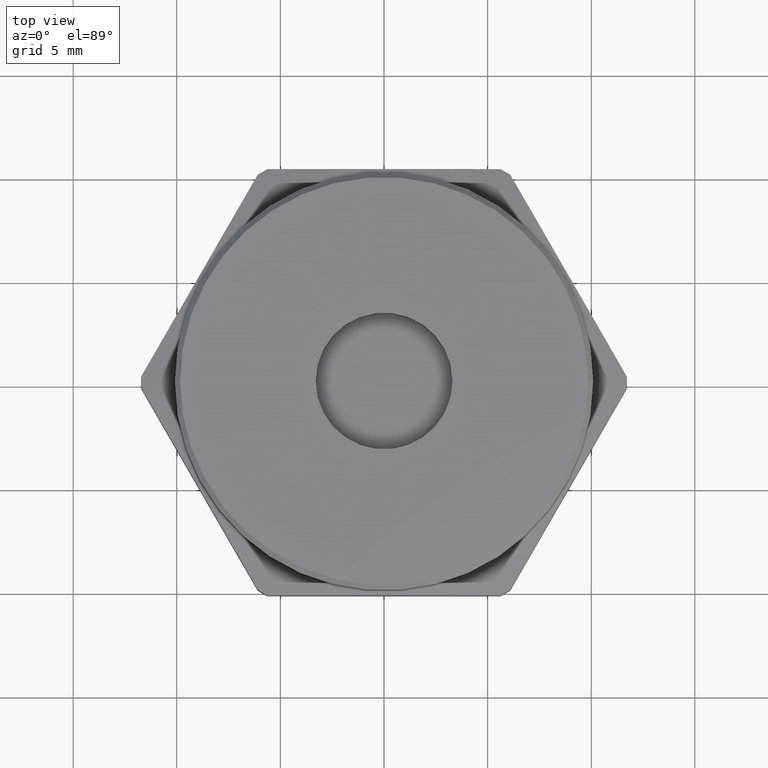
[diagram: clean part render]
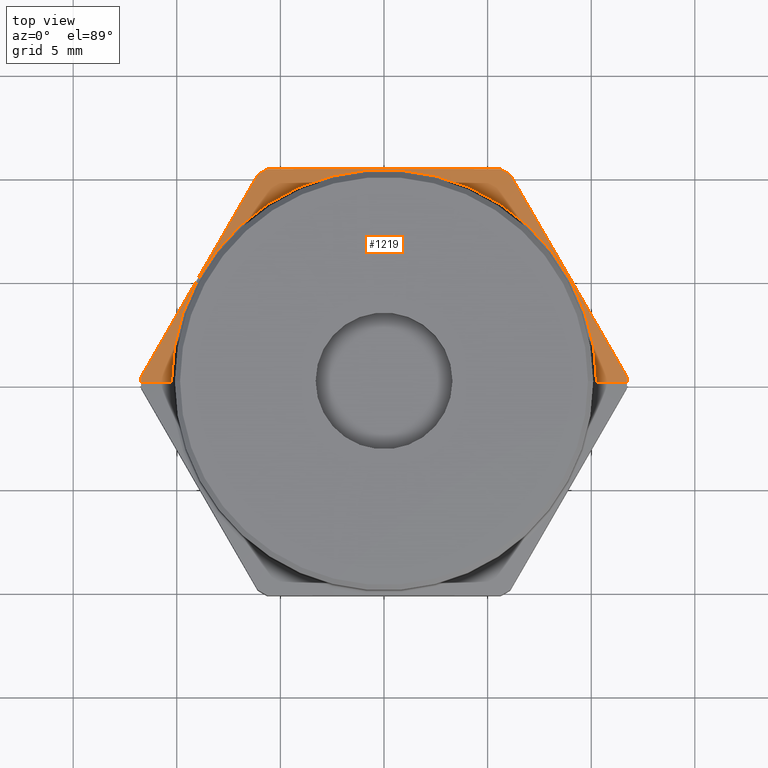
[diagram: same view with one face highlighted and labeled with its STEP entity id]
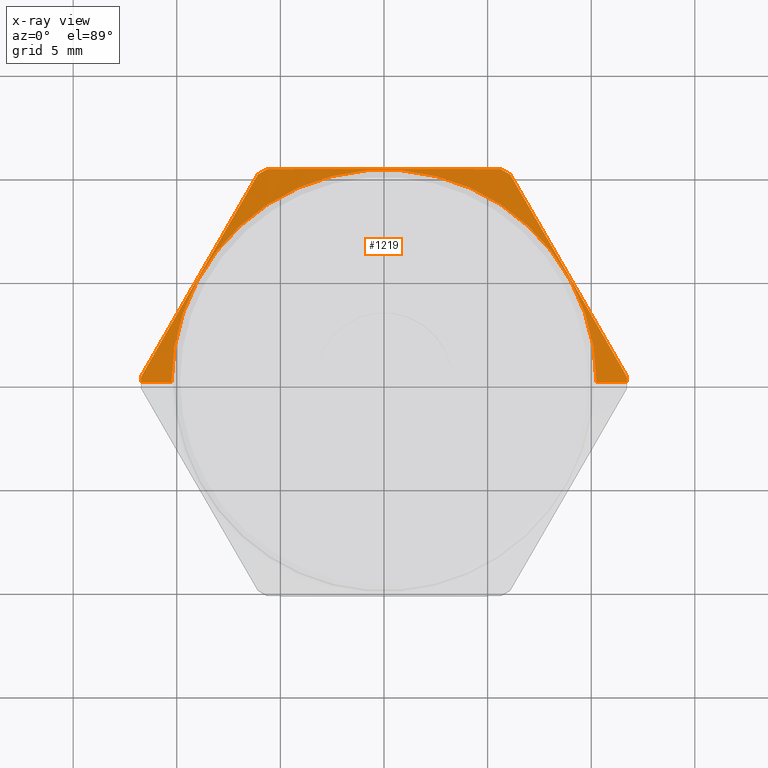
[diagram: x-ray of the same camera — body ghosted, the highlighted face saturated]
A machine part, top view. The second image highlights one B-rep face of the part: STEP entity #1219.
The next image is the same camera in x-ray: the body ghosted, the highlighted face saturated — about 0% of this face is hidden behind the body in this view.
In plain terms, the highlighted conical surface has half-angle 78 deg.
Its self-contained STEP definition (entity closure, byte-faithful):
#70 = CIRCLE ( 'NONE', #240, 0.4616537180435968900 ) ;
#73 = CIRCLE ( 'NONE', #239, 0.4616537180435968900 ) ;
#76 = LINE ( 'NONE', #2208, #79 ) ;
#78 = CIRCLE ( 'NONE', #241, 0.4616537180435968900 ) ;
#79 = VECTOR ( 'NONE', #2209, 39.37007874015747400 ) ;
#80 = LINE ( 'NONE', #2204, #83 ) ;
#81 = CIRCLE ( 'NONE', #242, 0.4038367064734578200 ) ;
#82 = CIRCLE ( 'NONE', #243, 0.4616537180435968900 ) ;
#83 = VECTOR ( 'NONE', #2215, 39.37007874015748100 ) ;
#197 = ORIENTED_EDGE ( 'NONE', *, *, #690, .F. ) ;
#198 = ORIENTED_EDGE ( 'NONE', *, *, #689, .T. ) ;
#199 = ORIENTED_EDGE ( 'NONE', *, *, #688, .F. ) ;
#200 = ORIENTED_EDGE ( 'NONE', *, *, #692, .F. ) ;
#239 = AXIS2_PLACEMENT_3D ( 'NONE', #2198, #2199, #2200 ) ;
#240 = AXIS2_PLACEMENT_3D ( 'NONE', #2205, #2206, #2207 ) ;
#241 = AXIS2_PLACEMENT_3D ( 'NONE', #2212, #2213, #2214 ) ;
#242 = AXIS2_PLACEMENT_3D ( 'NONE', #2220, #2221, #2222 ) ;
#243 = AXIS2_PLACEMENT_3D ( 'NONE', #2225, #2226, #2227 ) ;
#278 = AXIS2_PLACEMENT_3D ( 'NONE', #792, #793, #791 ) ;
#367 = VERTEX_POINT ( 'NONE', #1484 ) ;
#370 = VERTEX_POINT ( 'NONE', #1486 ) ;
#371 = VERTEX_POINT ( 'NONE', #1491 ) ;
#373 = VERTEX_POINT ( 'NONE', #1492 ) ;
#374 = VERTEX_POINT ( 'NONE', #1493 ) ;
#375 = VERTEX_POINT ( 'NONE', #1494 ) ;
#434 = VERTEX_POINT ( 'NONE', #1522 ) ;
#462 = VERTEX_POINT ( 'NONE', #1549 ) ;
#507 = FACE_OUTER_BOUND ( 'NONE', #1317, .T. ) ;
#516 = CONICAL_SURFACE ( 'NONE', #278, 0.4616537180435968900, 1.361356816555569800 ) ;
#544 = B_SPLINE_CURVE_WITH_KNOTS ( 'NONE', 3,
 ( #2196, #2197, #2201, #2202, #2203 ),
 .UNSPECIFIED., .F., .F.,
 ( 4, 1, 4 ),
 ( 1.960092708449298800E-006, 0.005630175714662177800, 0.01125839133661590700 ),
 .UNSPECIFIED. ) ;
#545 = B_SPLINE_CURVE_WITH_KNOTS ( 'NONE', 3,
 ( #2210, #2211, #2216, #2217, #2218 ),
 .UNSPECIFIED., .F., .F.,
 ( 4, 1, 4 ),
 ( 1.960092707716520800E-006, 0.005630175714661432700, 0.01125839133661515000 ),
 .UNSPECIFIED. ) ;
#546 = B_SPLINE_CURVE_WITH_KNOTS ( 'NONE', 3,
 ( #2223, #2224, #2228, #2229, #2230, #2231, #2232, #2233 ),
 .UNSPECIFIED., .F., .F.,
 ( 4, 2, 2, 4 ),
 ( 0.02276292448879223300, 0.02840779419872965100, 0.03123022905369836000, 0.03405266390866706900 ),
 .UNSPECIFIED. ) ;
#688 = EDGE_CURVE ( 'NONE', #370, #462, #73, .T. ) ;
#689 = EDGE_CURVE ( 'NONE', #374, #462, #544, .T. ) ;
#690 = EDGE_CURVE ( 'NONE', #374, #367, #70, .T. ) ;
#692 = EDGE_CURVE ( 'NONE', #371, #370, #76, .T. ) ;
#693 = EDGE_CURVE ( 'NONE', #375, #373, #78, .T. ) ;
#694 = EDGE_CURVE ( 'NONE', #434, #373, #545, .T. ) ;
#695 = EDGE_CURVE ( 'NONE', #371, #1978, #81, .T. ) ;
#696 = EDGE_CURVE ( 'NONE', #1978, #1976, #80, .T. ) ;
#697 = EDGE_CURVE ( 'NONE', #434, #1976, #82, .T. ) ;
#698 = EDGE_CURVE ( 'NONE', #375, #367, #546, .T. ) ;
#791 = DIRECTION ( 'NONE',  ( -1.000000000000000000, 0.0000000000000000000, 1.109536171359670600E-016 ) ) ;
#792 = CARTESIAN_POINT ( 'NONE',  ( 1.547509084172229300E-017, 0.0000000000000000000, 0.1263637062743045400 ) ) ;
#793 = DIRECTION ( 'NONE',  ( -1.224646799147349800E-016, -0.0000000000000000000, -1.000000000000000000 ) ) ;
#926 = CARTESIAN_POINT ( 'NONE',  ( 0.4038367064734577600, 4.945573299609291600E-017, 0.1386530914596896000 ) ) ;
#930 = CARTESIAN_POINT ( 'NONE',  ( 0.4616537180435968900, 5.653627481165655800E-017, 0.1263637062743044900 ) ) ;
#1219 = ADVANCED_FACE ( 'NONE', ( #507 ), #516, .T. ) ;
#1317 = EDGE_LOOP ( 'NONE', ( #2590, #2591, #2592, #2593, #2594, #2595, #197, #198, #199, #200 ) ) ;
#1484 = CARTESIAN_POINT ( 'NONE',  ( -0.2215832922029023800, 0.4050000000000001400, 0.1263637062743045700 ) ) ;
#1486 = CARTESIAN_POINT ( 'NONE',  ( -0.4616537180435968900, 0.0000000000000000000, 0.1263637062743046000 ) ) ;
#1491 = CARTESIAN_POINT ( 'NONE',  ( -0.4038367064734579800, 0.0000000000000000000, 0.1386530914596896500 ) ) ;
#1492 = CARTESIAN_POINT ( 'NONE',  ( 0.2399486424312465300, 0.3943967601019038300, 0.1263637062743045200 ) ) ;
#1493 = CARTESIAN_POINT ( 'NONE',  ( -0.2399486424312465300, 0.3943967601019038300, 0.1263637062743045700 ) ) ;
#1494 = CARTESIAN_POINT ( 'NONE',  ( 0.2215832922029021500, 0.4050000000000002500, 0.1263637062743045200 ) ) ;
#1522 = CARTESIAN_POINT ( 'NONE',  ( 0.4615319346341489300, 0.01060323989809651800, 0.1263637062743044900 ) ) ;
#1549 = CARTESIAN_POINT ( 'NONE',  ( -0.4615319346341490400, 0.01060323989809559800, 0.1263637062743046000 ) ) ;
#1976 = VERTEX_POINT ( 'NONE', #930 ) ;
#1978 = VERTEX_POINT ( 'NONE', #926 ) ;
#2196 = CARTESIAN_POINT ( 'NONE',  ( -0.2399486424312465300, 0.3943967601019038300, 0.1263637062743045700 ) ) ;
#2197 = CARTESIAN_POINT ( 'NONE',  ( -0.2768791911317302600, 0.3304311734012691000, 0.1338991866869406500 ) ) ;
#2198 = CARTESIAN_POINT ( 'NONE',  ( 1.547509084172229300E-017, 0.0000000000000000000, 0.1263637062743045400 ) ) ;
#2199 = DIRECTION ( 'NONE',  ( -1.224646799147349800E-016, -0.0000000000000000000, -1.000000000000000000 ) ) ;
#2200 = DIRECTION ( 'NONE',  ( -1.000000000000000000, 0.0000000000000000000, 1.109536171359670600E-016 ) ) ;
#2201 = CARTESIAN_POINT ( 'NONE',  ( -0.3507402885326976700, 0.2024999999999997900, 0.1429124648880091300 ) ) ;
#2202 = CARTESIAN_POINT ( 'NONE',  ( -0.4246013859336653100, 0.07456882659873020900, 0.1338991866869406500 ) ) ;
#2203 = CARTESIAN_POINT ( 'NONE',  ( -0.4615319346341490400, 0.01060323989809559800, 0.1263637062743046000 ) ) ;
#2204 = CARTESIAN_POINT ( 'NONE',  ( 0.4616537180435968900, 5.653627481165655800E-017, 0.1263637062743044900 ) ) ;
#2205 = CARTESIAN_POINT ( 'NONE',  ( 1.547509084172229300E-017, 0.0000000000000000000, 0.1263637062743045400 ) ) ;
#2206 = DIRECTION ( 'NONE',  ( -1.224646799147349800E-016, -0.0000000000000000000, -1.000000000000000000 ) ) ;
#2207 = DIRECTION ( 'NONE',  ( -1.000000000000000000, 0.0000000000000000000, 1.109536171359670600E-016 ) ) ;
#2208 = CARTESIAN_POINT ( 'NONE',  ( -0.4616537180435968900, 0.0000000000000000000, 0.1263637062743046000 ) ) ;
#2209 = DIRECTION ( 'NONE',  ( -0.9781476007338042500, 0.0000000000000000000, -0.2079116908177663400 ) ) ;
#2210 = CARTESIAN_POINT ( 'NONE',  ( 0.4615319346341489300, 0.01060323989809651800, 0.1263637062743044900 ) ) ;
#2211 = CARTESIAN_POINT ( 'NONE',  ( 0.4246013859336650900, 0.07456882659873105600, 0.1338991866869405100 ) ) ;
#2212 = CARTESIAN_POINT ( 'NONE',  ( 1.547509084172229300E-017, 0.0000000000000000000, 0.1263637062743045400 ) ) ;
#2213 = DIRECTION ( 'NONE',  ( -1.224646799147349800E-016, -0.0000000000000000000, -1.000000000000000000 ) ) ;
#2214 = DIRECTION ( 'NONE',  ( -1.000000000000000000, 0.0000000000000000000, 1.109536171359670600E-016 ) ) ;
#2215 = DIRECTION ( 'NONE',  ( 0.9781476007338040200, 1.197885328332316500E-016, -0.2079116908177665300 ) ) ;
#2216 = CARTESIAN_POINT ( 'NONE',  ( 0.3507402885326977300, 0.2025000000000002400, 0.1429124648880089600 ) ) ;
#2217 = CARTESIAN_POINT ( 'NONE',  ( 0.2768791911317303200, 0.3304311734012692600, 0.1338991866869405600 ) ) ;
#2218 = CARTESIAN_POINT ( 'NONE',  ( 0.2399486424312465300, 0.3943967601019038300, 0.1263637062743045200 ) ) ;
#2220 = CARTESIAN_POINT ( 'NONE',  ( 1.698010646479936400E-017, 0.0000000000000000000, 0.1386530914596896300 ) ) ;
#2221 = DIRECTION ( 'NONE',  ( -6.123233995736748800E-017, -0.0000000000000000000, -1.000000000000000000 ) ) ;
#2222 = DIRECTION ( 'NONE',  ( 1.000000000000000000, 0.0000000000000000000, -4.227958896927027400E-017 ) ) ;
#2223 = CARTESIAN_POINT ( 'NONE',  ( 0.2215832922029021500, 0.4050000000000002500, 0.1263637062743045200 ) ) ;
#2224 = CARTESIAN_POINT ( 'NONE',  ( 0.1478796550287042000, 0.4050000000000002500, 0.1338831222295150900 ) ) ;
#2225 = CARTESIAN_POINT ( 'NONE',  ( 1.547509084172229300E-017, 0.0000000000000000000, 0.1263637062743045400 ) ) ;
#2226 = DIRECTION ( 'NONE',  ( -1.224646799147349800E-016, -0.0000000000000000000, -1.000000000000000000 ) ) ;
#2227 = DIRECTION ( 'NONE',  ( -1.000000000000000000, 0.0000000000000000000, 1.109536171359670600E-016 ) ) ;
#2228 = CARTESIAN_POINT ( 'NONE',  ( 0.07410851594145809200, 0.4050000000000001900, 0.1383966526278820600 ) ) ;
#2229 = CARTESIAN_POINT ( 'NONE',  ( -0.03669992187871323800, 0.4050000000000002500, 0.1384103904023835900 ) ) ;
#2230 = CARTESIAN_POINT ( 'NONE',  ( -0.07366059448121573000, 0.4050000000000002500, 0.1373227881641560200 ) ) ;
#2231 = CARTESIAN_POINT ( 'NONE',  ( -0.1476261358480750500, 0.4050000000000004200, 0.1331795119903692000 ) ) ;
#2232 = CARTESIAN_POINT ( 'NONE',  ( -0.1846688483680798400, 0.4050000000000001900, 0.1301298034248867800 ) ) ;
#2233 = CARTESIAN_POINT ( 'NONE',  ( -0.2215832922029023800, 0.4050000000000001400, 0.1263637062743045700 ) ) ;
#2590 = ORIENTED_EDGE ( 'NONE', *, *, #695, .T. ) ;
#2591 = ORIENTED_EDGE ( 'NONE', *, *, #696, .T. ) ;
#2592 = ORIENTED_EDGE ( 'NONE', *, *, #697, .F. ) ;
#2593 = ORIENTED_EDGE ( 'NONE', *, *, #694, .T. ) ;
#2594 = ORIENTED_EDGE ( 'NONE', *, *, #693, .F. ) ;
#2595 = ORIENTED_EDGE ( 'NONE', *, *, #698, .T. ) ;